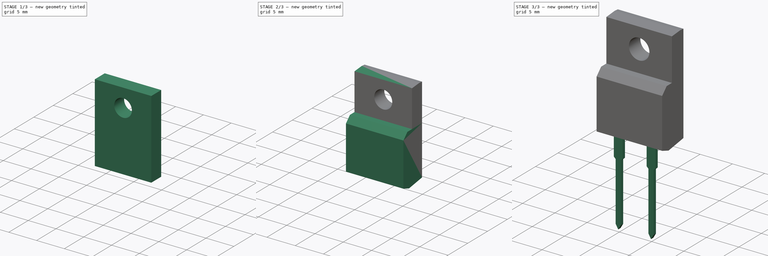
[diagram: build sequence overview — one tinted view per stage of 3, left to right]
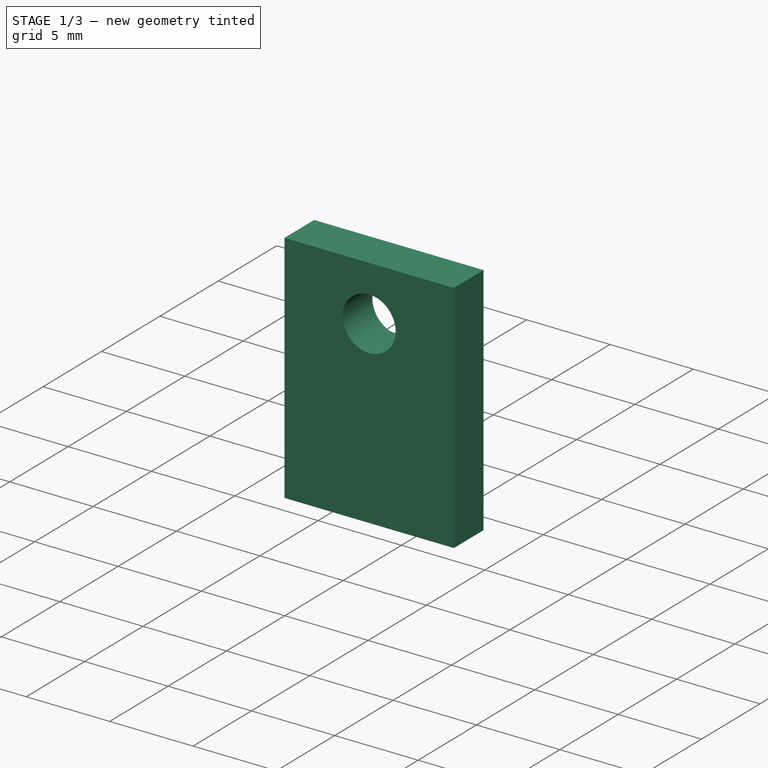
[diagram: stage 1 of 3 — iso view after this stage's code; geometry added in this stage tinted green]
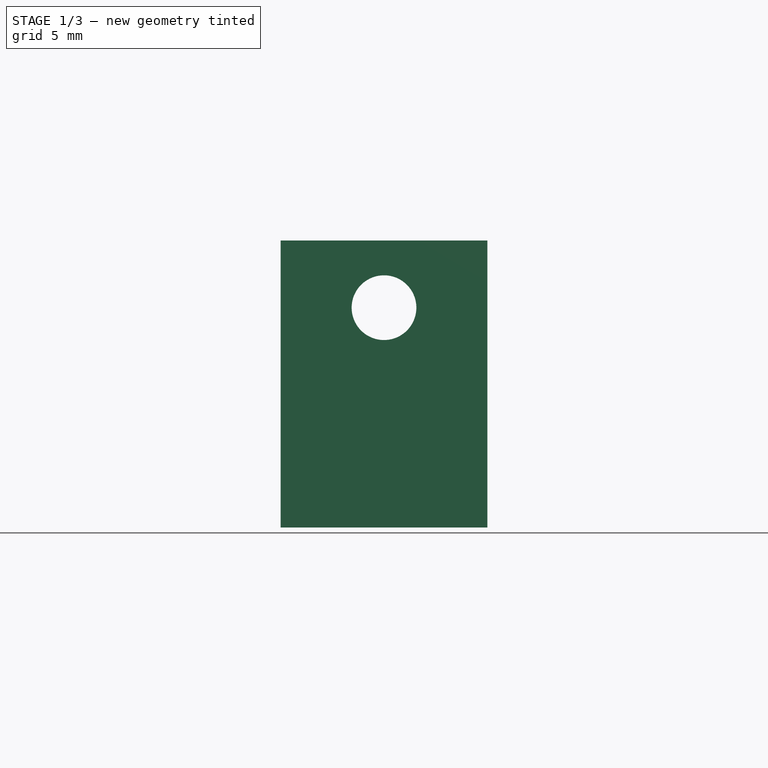
[diagram: stage 1 of 3 — front view after this stage's code; geometry added in this stage tinted green]
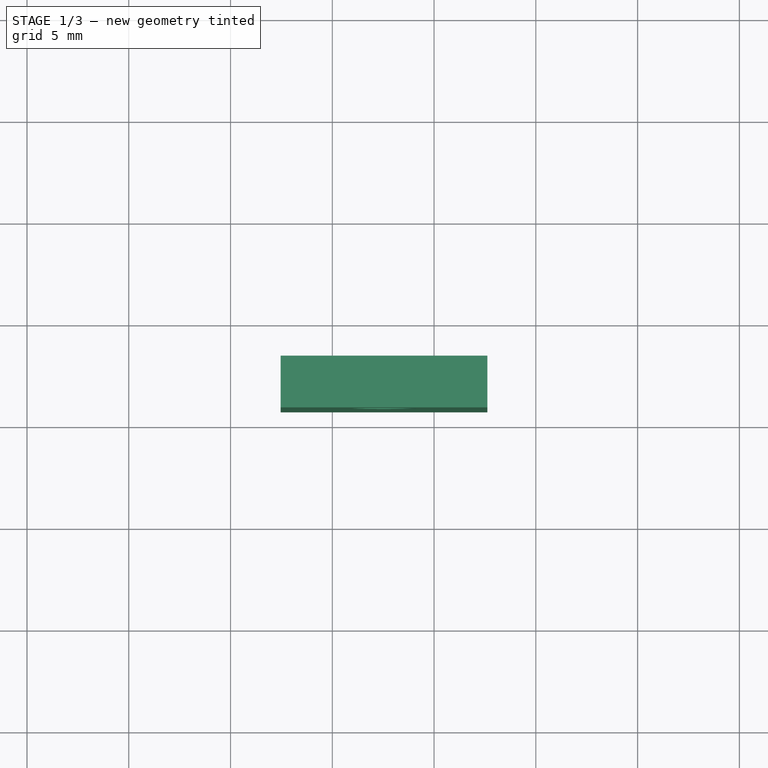
[diagram: stage 1 of 3 — top view after this stage's code; geometry added in this stage tinted green]
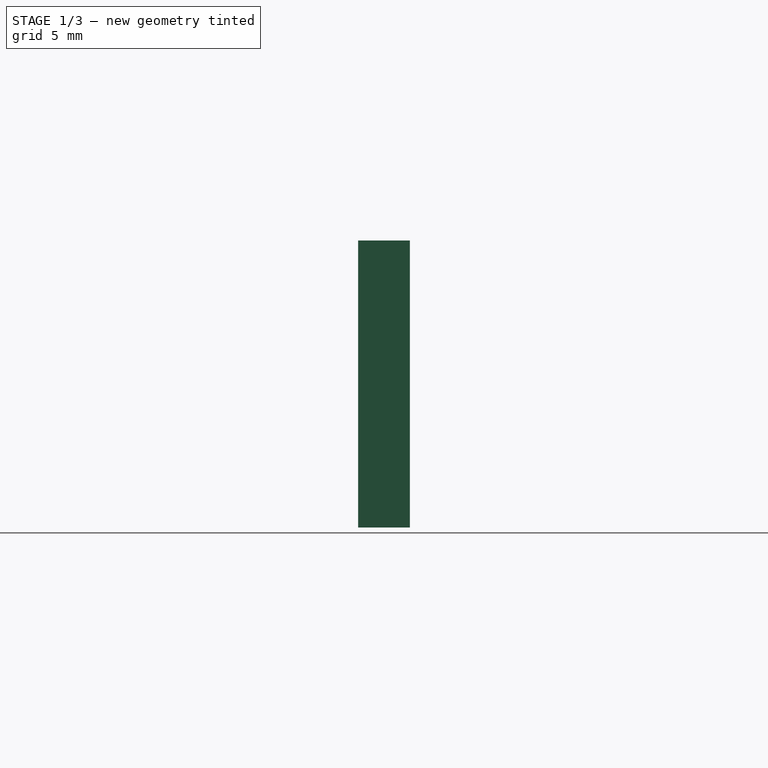
[diagram: stage 1 of 3 — right view after this stage's code; geometry added in this stage tinted green]
FCSTD DOCUMENT  (FreeCAD 0.16R6712 (Git))
Label: TO-220F-2_Vertical
License: All rights reserved
LicenseURL: http://en.wikipedia.org/wiki/All_rights_reserved
objects: Sketcher::SketchObject×5, PartDesign::Pad×3, PartDesign::Pocket×2, Part::MultiFuse×1
note: 16 computed .brp shape members not serialized (recipe doc carries the construction recipe); baked Part::Feature solids carry a one-line shape summary decoded from their .brp

FEATURE [Sketcher::SketchObject] Sketch004
  Placement = pos=(0,0,5) rot=(0,0,1;0rad)
  expr: Constraints[10] = (2.96 + 2.56) / 2 + (0.6 + 0.45) / 2
  expr: Constraints[9] = (2.42 + 2.66) / 2
  expr: Constraints[8] = (9.960000000000001 + 10.36) / 2
  sketch-geometry (5):
    g0: LineSegment StartX=-2.54 StartY=3.285 StartZ=0 EndX=7.62 EndY=3.285 EndZ=0
    g1: LineSegment StartX=7.62 StartY=3.285 StartZ=0 EndX=7.62 EndY=0.745 EndZ=0
    g2: LineSegment StartX=7.62 StartY=0.745 StartZ=0 EndX=-2.54 EndY=0.745 EndZ=0
    g3: LineSegment StartX=-2.54 StartY=0.745 StartZ=0 EndX=-2.54 EndY=3.285 EndZ=0
    g4: LineSegment [constr] StartX=0 StartY=3.285 StartZ=0 EndX=2.54 EndY=3.285 EndZ=0
  constraints (15):
    c: Coincident(g0,g1)
    c: Coincident(g1,g2)
    c: Coincident(g2,g3)
    c: Coincident(g3,g0)
    c: Horizontal(g0)
    c: Horizontal(g2)
    c: Vertical(g1)
    c: Vertical(g3)
    c: DistanceX(g0,g0) = 10.16
    c: DistanceY(g3,g3) = 2.54
    c: DistanceY(g-1,g0) = 3.285
    c: PointOnObject(g4,g-2)
    c: Horizontal(g4)
    c: DistanceX(g4,g4) = 2.54
    c: Symmetric(g0,g0,g4)
FEATURE [PartDesign::Pad] Pad002
  Length = 14.1
  Length2 = 100
  Placement = pos=(0,0,5) rot=(0,0,1;0rad)
  Sketch = -> Sketch004
  Type = 0
  expr: Length = (16.07 + 15.67) / 2 + 3.23 - 5
FEATURE [Sketcher::SketchObject] Sketch005
  ExternalGeometry = -> [Pad002]
  Placement = pos=(0,0.745,5) rot=(1,0,0;1.5708rad)
  Support = -> Pad002 [Face3]
  expr: Constraints[1] = 3.18 / 2
  sketch-geometry (1):
    g0: Circle CenterX=2.54 CenterY=10.8 CenterZ=0 NormalX=0 NormalY=0 NormalZ=1 Radius=1.59
  constraints (3):
    c: DistanceX(g-1,g0) = 2.54
    c: Radius(g0) = 1.59
    c: DistanceY(g0,g-3) = 3.3
FEATURE [PartDesign::Pocket] Pocket
  Length = 5
  Placement = pos=(0,0,5) rot=(0,0,1;0rad)
  Sketch = -> Sketch005
  Type = 1
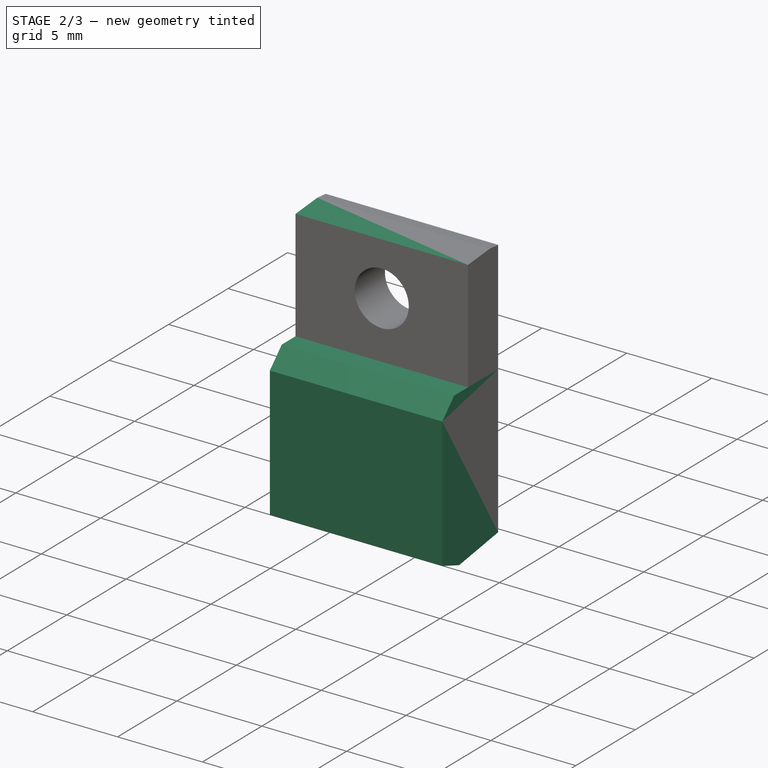
[diagram: stage 2 of 3 — iso view after this stage's code; geometry added in this stage tinted green]
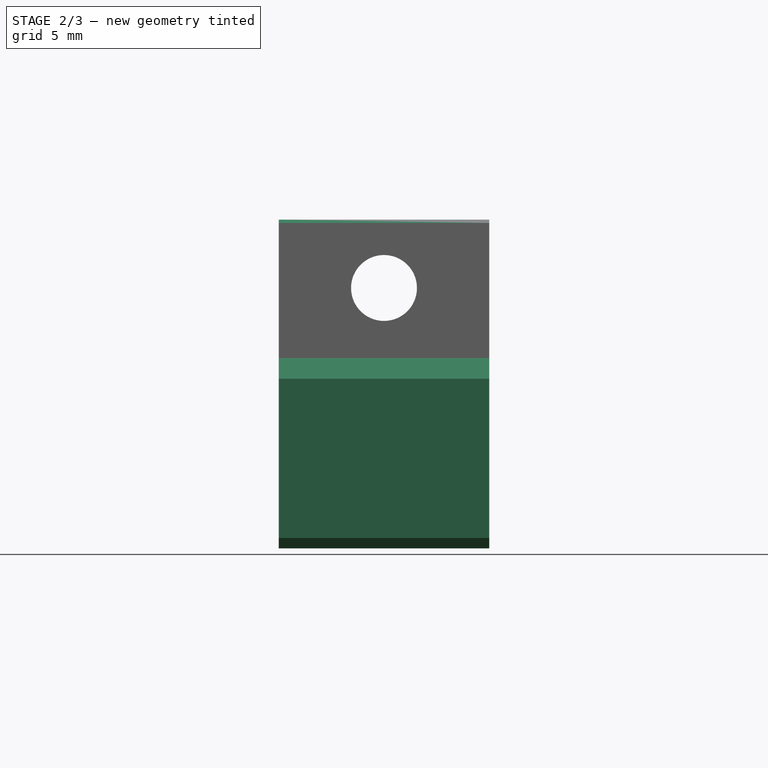
[diagram: stage 2 of 3 — front view after this stage's code; geometry added in this stage tinted green]
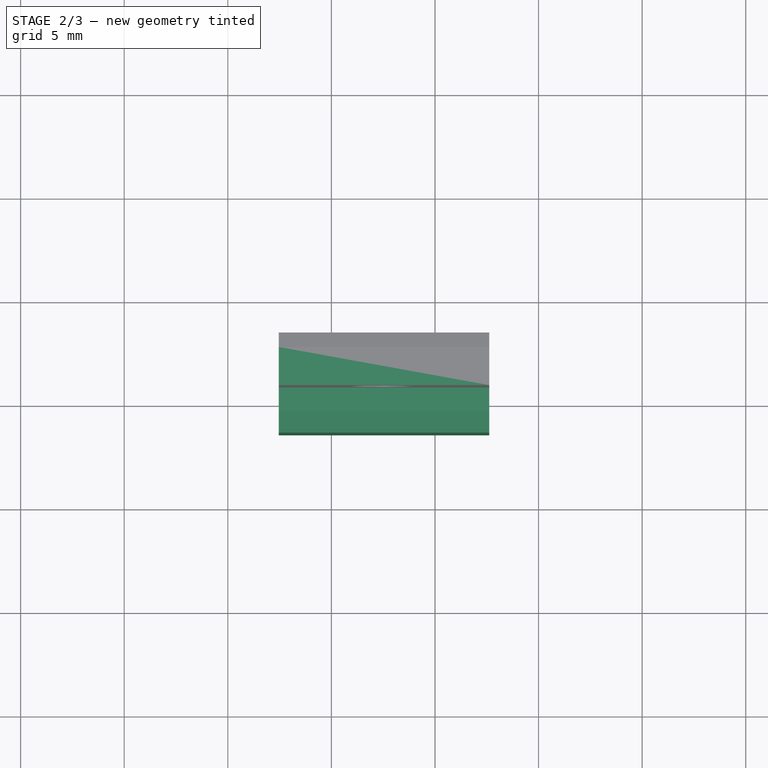
[diagram: stage 2 of 3 — top view after this stage's code; geometry added in this stage tinted green]
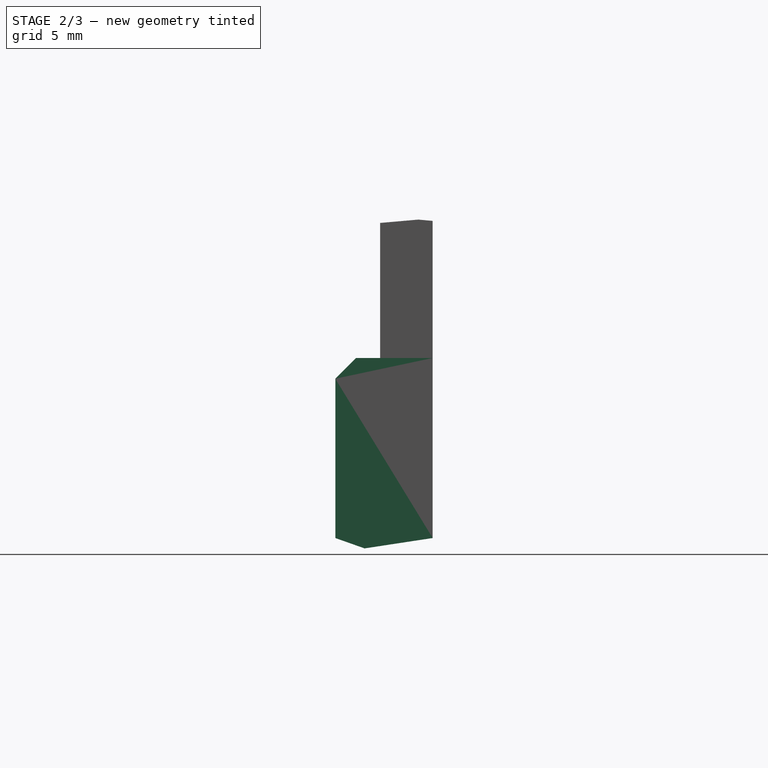
[diagram: stage 2 of 3 — right view after this stage's code; geometry added in this stage tinted green]
FEATURE [Sketcher::SketchObject] Sketch001
  Placement = pos=(2.54,0,0) rot=(0.57735,0.57735,0.57735;2.0944rad)
  expr: Constraints[16] = (16.07 + 15.67) / 2 - 6.68
  expr: Constraints[14] = (4.5 + 4.9) / 2
  expr: Constraints[13] = (2.96 + 2.56) / 2 + (0.6 + 0.45) / 2
  sketch-geometry (7):
    g0: LineSegment StartX=0 StartY=3.23 StartZ=0 EndX=-1.415 EndY=3.73 EndZ=0
    g1: LineSegment StartX=-1.415 StartY=3.73 StartZ=0 EndX=-1.415 EndY=11.42 EndZ=0
    g2: LineSegment StartX=-1.415 StartY=11.42 StartZ=0 EndX=-0.415 EndY=12.42 EndZ=0
    g3: LineSegment StartX=-0.415 StartY=12.42 StartZ=0 EndX=3.285 EndY=12.42 EndZ=0
    g4: LineSegment StartX=3.285 StartY=12.42 StartZ=0 EndX=3.285 EndY=3.73 EndZ=0
    g5: LineSegment StartX=3.285 StartY=3.73 StartZ=0 EndX=0 EndY=3.23 EndZ=0
    g6: LineSegment [constr] StartX=-1.415 StartY=3.73 StartZ=0 EndX=3.285 EndY=3.73 EndZ=0
  constraints (20):
    c: PointOnObject(g0,g-2)
    c: Coincident(g1,g0)
    c: Vertical(g1)
    c: Coincident(g2,g1)
    c: Horizontal(g3)
    c: Coincident(g4,g3)
    c: Vertical(g4)
    c: Coincident(g5,g4)
    c: Coincident(g5,g0)
    c: Coincident(g6,g0)
    c: Coincident(g6,g4)
    c: Horizontal(g6)
    c: Angle(g1,g2) = 2.35619
    c: DistanceX(g0,g4) = 3.285
    c: DistanceX(g1,g3) = 4.7
    c: DistanceY(g0,g4) = 0.5
    c: DistanceY(g0,g3) = 9.19
    c: Coincident(g2,g3)
    c: DistanceX(g1,g2) = 1
    c: DistanceY(g-1,g0) = 3.23
FEATURE [PartDesign::Pad] Pad001
  Length = 10.16
  Length2 = 100
  Midplane = true
  Placement = pos=(2.54,0,0) rot=(0.57735,0.57735,0.57735;2.0944rad)
  Sketch = -> Sketch001
  Type = 0
  expr: Length = (9.960000000000001 + 10.36) / 2
FEATURE [Sketcher::SketchObject] Sketch006
  ExternalGeometry = -> [Pocket]
  Placement = pos=(7.62,0,5) rot=(0.57735,0.57735,0.57735;2.0944rad)
  Support = -> Pocket [Face5]
  sketch-geometry (5):
    g0: LineSegment StartX=2.585 StartY=14.1 StartZ=0 EndX=0.745 EndY=13.939 EndZ=0
    g1: LineSegment StartX=0.745 StartY=13.939 StartZ=0 EndX=0.745 EndY=14.939 EndZ=0
    g2: LineSegment StartX=0.745 StartY=14.939 StartZ=0 EndX=3.285 EndY=14.939 EndZ=0
    g3: LineSegment StartX=3.285 StartY=14.939 StartZ=0 EndX=3.285 EndY=14.0388 EndZ=0
    g4: LineSegment StartX=3.285 StartY=14.0388 StartZ=0 EndX=2.585 EndY=14.1 EndZ=0
  constraints (15):
    c: PointOnObject(g0,g-3)
    c: Coincident(g1,g0)
    c: Vertical(g1)
    c: Coincident(g2,g1)
    c: Horizontal(g2)
    c: Coincident(g3,g2)
    c: Vertical(g3)
    c: PointOnObject(g-3,g3)
    c: PointOnObject(g-3,g1)
    c: Angle(g-3,g0) = 0.0872665
    c: Angle(g4,g-3) = 0.0872665
    c: Coincident(g4,g0)
    c: Coincident(g3,g4)
    c: DistanceX(g0,g-3) = 0.7
    c: DistanceY(g1,g1) = 1
FEATURE [PartDesign::Pocket] Pocket001
  Length = 5
  Placement = pos=(0,0,5) rot=(0,0,1;0rad)
  Sketch = -> Sketch006
  Type = 1
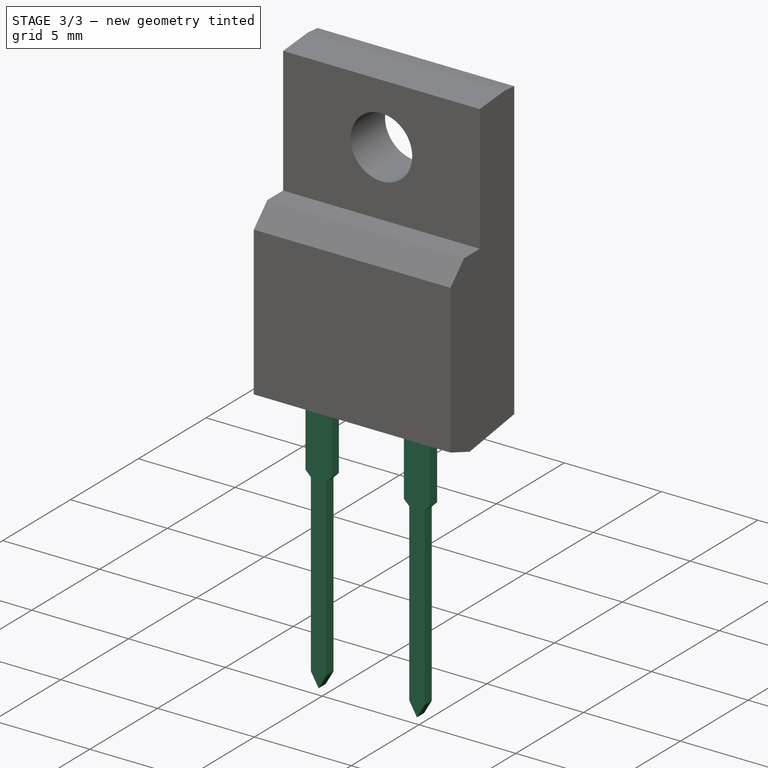
[diagram: stage 3 of 3 — iso view after this stage's code; geometry added in this stage tinted green]
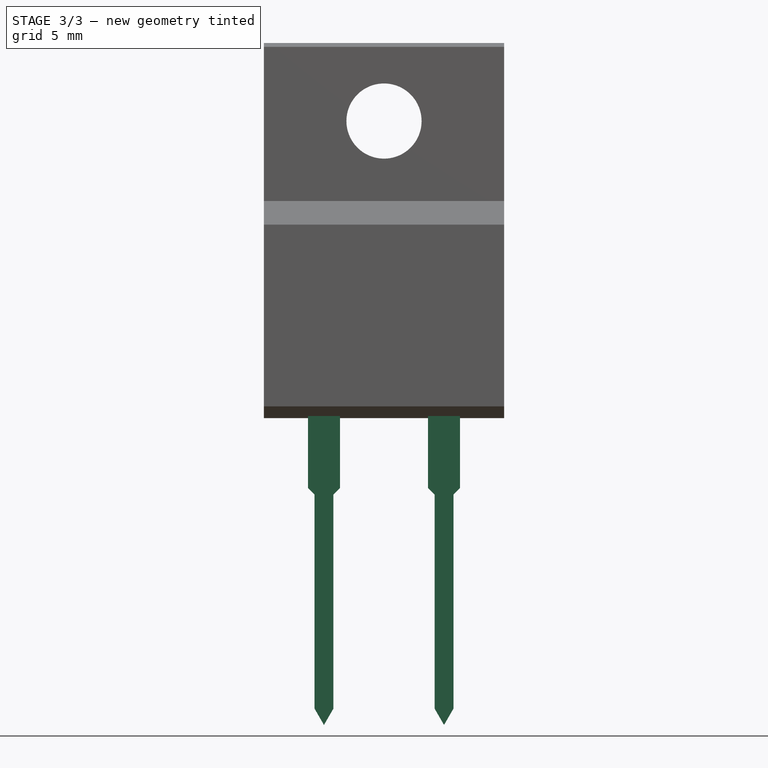
[diagram: stage 3 of 3 — front view after this stage's code; geometry added in this stage tinted green]
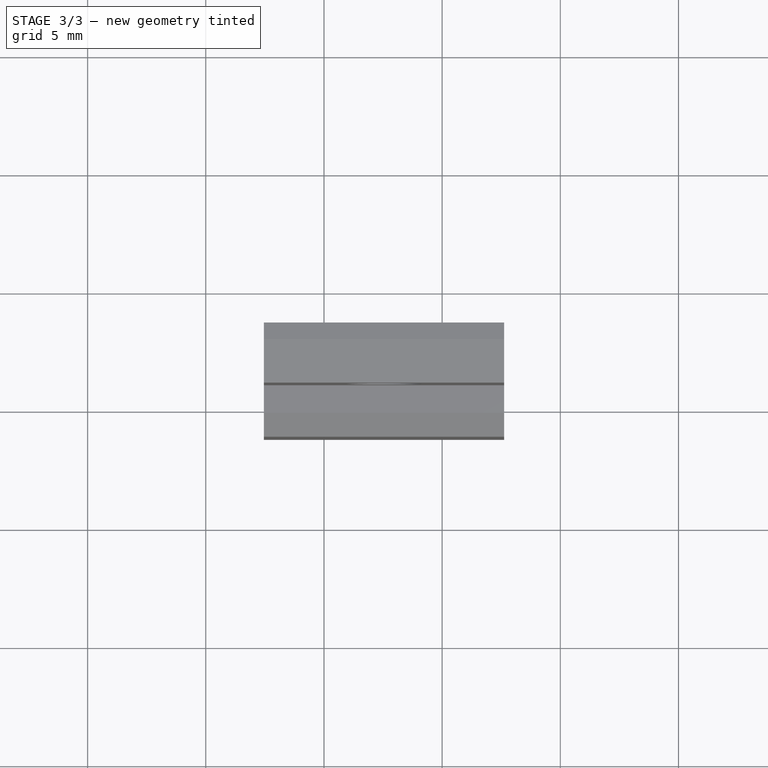
[diagram: stage 3 of 3 — top view after this stage's code; geometry added in this stage tinted green]
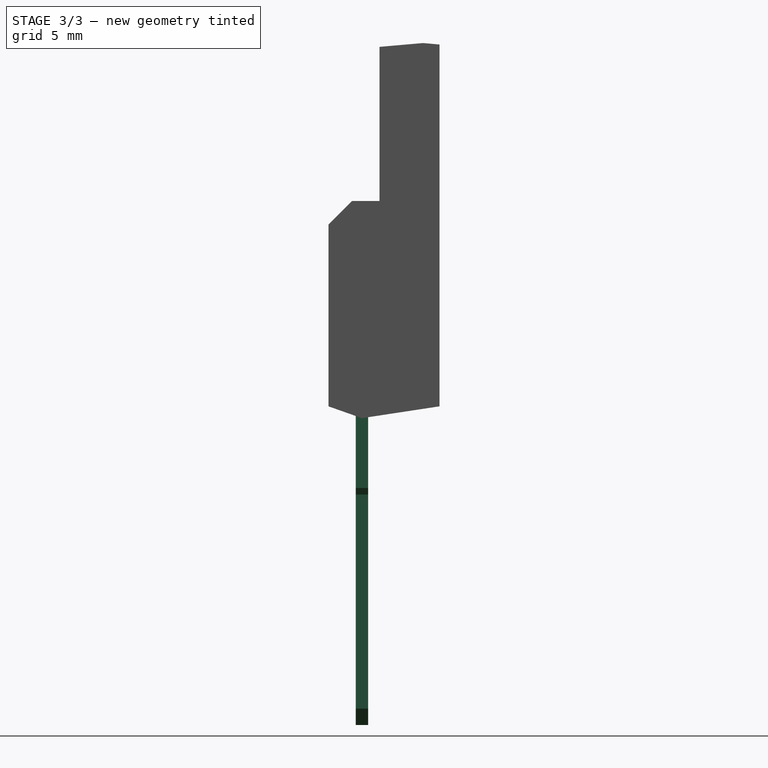
[diagram: stage 3 of 3 — right view after this stage's code; geometry added in this stage tinted green]
FEATURE [Sketcher::SketchObject] Sketch
  Placement = pos=(0,0,0) rot=(1,0,0;1.5708rad)
  expr: Constraints[36] = (10.05 + 9.449999999999999) / 2
  expr: Constraints[7] = (1.47 + 1.24) / 2
  expr: Constraints[33] = 3.23 + 0.5
  sketch-geometry (33):
    g0: LineSegment [constr] StartX=-0.4 StartY=0 StartZ=0 EndX=0.4 EndY=0 EndZ=0
    g1: LineSegment [constr] StartX=-0.6775 StartY=0.2775 StartZ=0 EndX=0.6775 EndY=0.2775 EndZ=0
    g2: GeomPoint [constr] X=0 Y=0.2775 Z=0
    g3: LineSegment [constr] StartX=-0.4 StartY=-9.05718 StartZ=0 EndX=0.4 EndY=-9.05718 EndZ=0
    g4: GeomPoint [constr] X=0 Y=-9.05718 Z=0
    g5: LineSegment StartX=-0.6775 StartY=0.2775 StartZ=0 EndX=-0.4 EndY=0 EndZ=0
    g6: LineSegment StartX=-0.4 StartY=0 StartZ=0 EndX=-0.4 EndY=-9.05718 EndZ=0
    g7: LineSegment StartX=-0.4 StartY=-9.05718 StartZ=0 EndX=0 EndY=-9.75 EndZ=0
    g8: LineSegment StartX=0 StartY=-9.75 StartZ=0 EndX=0.4 EndY=-9.05718 EndZ=0
    g9: LineSegment StartX=0.4 StartY=-9.05718 StartZ=0 EndX=0.4 EndY=0 EndZ=0
    g10: LineSegment StartX=0.4 StartY=0 StartZ=0 EndX=0.6775 EndY=0.2775 EndZ=0
    g11: LineSegment StartX=0.6775 StartY=0.2775 StartZ=0 EndX=0.6775 EndY=3.73 EndZ=0
    g12: LineSegment StartX=0.6775 StartY=3.73 StartZ=0 EndX=-0.6775 EndY=3.73 EndZ=0
    g13: LineSegment StartX=-0.6775 StartY=3.73 StartZ=0 EndX=-0.6775 EndY=0.2775 EndZ=0
    g14: LineSegment [constr] StartX=0 StartY=-9.75 StartZ=0 EndX=0 EndY=0.2775 EndZ=0
    g15: LineSegment [constr] StartX=4.68 StartY=0 StartZ=0 EndX=5.48 EndY=0 EndZ=0
    g16: LineSegment [constr] StartX=4.4025 StartY=0.2775 StartZ=0 EndX=5.7575 EndY=0.2775 EndZ=0
    g17: GeomPoint [constr] X=5.08 Y=0.2775 Z=0
    g18: LineSegment [constr] StartX=4.68 StartY=-9.05718 StartZ=0 EndX=5.48 EndY=-9.05718 EndZ=0
    g19: GeomPoint [constr] X=5.08 Y=-9.05718 Z=0
    g20: LineSegment StartX=4.4025 StartY=0.2775 StartZ=0 EndX=4.68 EndY=0 EndZ=0
    g21: LineSegment StartX=4.68 StartY=0 StartZ=0 EndX=4.68 EndY=-9.05718 EndZ=0
    g22: LineSegment StartX=4.68 StartY=-9.05718 StartZ=0 EndX=5.08 EndY=-9.75 EndZ=0
    g23: LineSegment StartX=5.08 StartY=-9.75 StartZ=0 EndX=5.48 EndY=-9.05718 EndZ=0
    g24: LineSegment StartX=5.48 StartY=-9.05718 StartZ=0 EndX=5.48 EndY=0 EndZ=0
    g25: LineSegment StartX=5.48 StartY=0 StartZ=0 EndX=5.7575 EndY=0.2775 EndZ=0
    g26: LineSegment StartX=5.7575 StartY=0.2775 StartZ=0 EndX=5.7575 EndY=3.73 EndZ=0
    g27: LineSegment StartX=5.7575 StartY=3.73 StartZ=0 EndX=4.4025 EndY=3.73 EndZ=0
    g28: LineSegment StartX=4.4025 StartY=3.73 StartZ=0 EndX=4.4025 EndY=0.2775 EndZ=0
    g29: LineSegment [constr] StartX=5.08 StartY=-9.75 StartZ=0 EndX=5.08 EndY=0.2775 EndZ=0
    g30: GeomPoint [constr] X=5.08 Y=0 Z=0
    g31: LineSegment [constr] StartX=0 StartY=-9.75 StartZ=0 EndX=5.08 EndY=-9.75 EndZ=0
    g32: LineSegment [constr] StartX=-0.6775 StartY=3.73 StartZ=0 EndX=4.4025 EndY=3.73 EndZ=0
  constraints (79):
    c: PointOnObject(g0,g-1)
    c: Horizontal(g0)
    c: Symmetric(g0,g0,g-1)
    c: DistanceX(g0,g0) = 0.8
    c: Horizontal(g1)
    c: PointOnObject(g2,g-2)
    c: Symmetric(g1,g1,g2)
    c: DistanceX(g1,g1) = 1.355
    c: Horizontal(g3)
    c: Equal(g0,g3) = 0.8
    c: PointOnObject(g4,g-2)
    c: Symmetric(g3,g3,g4)
    c: Coincident(g5,g1)
    c: Coincident(g5,g0)
    c: Coincident(g6,g0)
    c: Coincident(g6,g3)
    c: Coincident(g7,g3)
    c: Coincident(g8,g7)
    c: Coincident(g8,g3)
    c: PointOnObject(g7,g-2)
    c: Coincident(g9,g3)
    c: Coincident(g9,g0)
    c: Coincident(g10,g0)
    c: Coincident(g10,g1)
    c: Coincident(g11,g1)
    c: Vertical(g11)
    c: Coincident(g12,g11)
    c: Horizontal(g12)
    c: Coincident(g13,g12)
    c: Coincident(g13,g1)
    c: Vertical(g13)
    c: Angle(g5,g13) = 2.35619
    c: Angle(g9,g8) = 2.61799
    c: DistanceY(g-1,g12) = 3.73
    c: Coincident(g14,g7)
    c: Coincident(g14,g2)
    c: DistanceY(g7,g-1) = 9.75
    c: Horizontal(g15)
    c: Equal(g0,g15) = 0.8
    c: Horizontal(g16)
    c: Symmetric(g16,g16,g17)
    c: Equal(g1,g16) = 1.355
    c: Horizontal(g18)
    c: Equal(g15,g18) = 0.8
    c: Symmetric(g18,g18,g19)
    c: Coincident(g20,g16)
    c: Coincident(g20,g15)
    c: Coincident(g21,g15)
    c: Coincident(g21,g18)
    c: Coincident(g22,g18)
    c: Coincident(g23,g22)
    c: Coincident(g23,g18)
    c: Coincident(g24,g18)
    c: Coincident(g24,g15)
    c: Coincident(g25,g15)
    c: Coincident(g25,g16)
    c: Coincident(g26,g16)
    c: Vertical(g26)
    c: Coincident(g27,g26)
    c: Horizontal(g27)
    c: Coincident(g28,g27)
    c: Coincident(g28,g16)
    c: Vertical(g28)
    c: Angle(g20,g28) = 2.35619
    c: Angle(g24,g23) = 2.61799
    c: Coincident(g29,g22)
    c: Coincident(g29,g17)
    c: Vertical(g29)
    c: PointOnObject(g30,g29)
    c: Symmetric(g15,g15,g30)
    c: PointOnObject(g19,g29)
    c: Coincident(g31,g7)
    c: Coincident(g31,g22)
    c: Horizontal(g31)
    c: PointOnObject(g15,g-1)
    c: Coincident(g32,g12)
    c: Coincident(g32,g27)
    c: Horizontal(g32)
    c: DistanceX(g31,g31) = 5.08
FEATURE [PartDesign::Pad] Pad
  Length = 0.525
  Length2 = 100
  Midplane = true
  Placement = pos=(0,0,0) rot=(1,0,0;1.5708rad)
  Reversed = true
  Sketch = -> Sketch
  Type = 0
  expr: Length = (0.6 + 0.45) / 2
FEATURE [Part::MultiFuse] Pocket001_mp_cp  label="TO-220F-2_Vertical"
  Shapes = -> [Pocket001,Pad001,Pad]
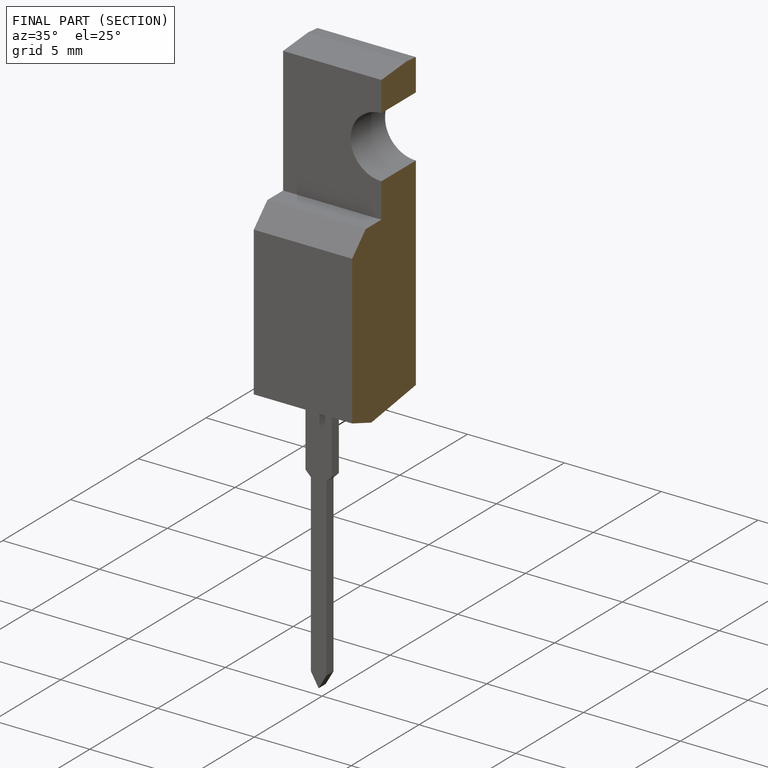
[diagram: finished part — half-section view (interior)]
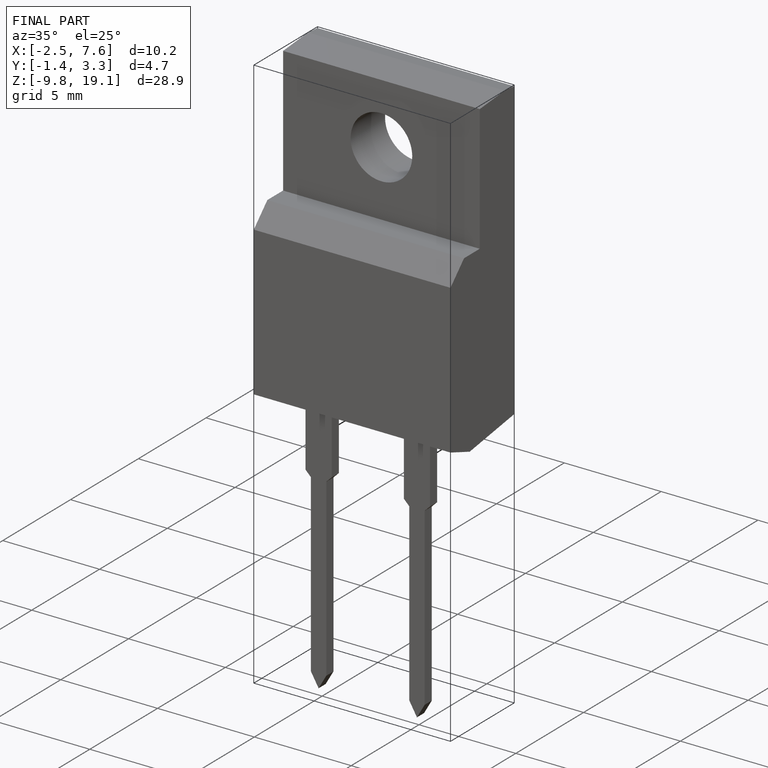
[diagram: finished part — iso view with bounding-box wireframe]
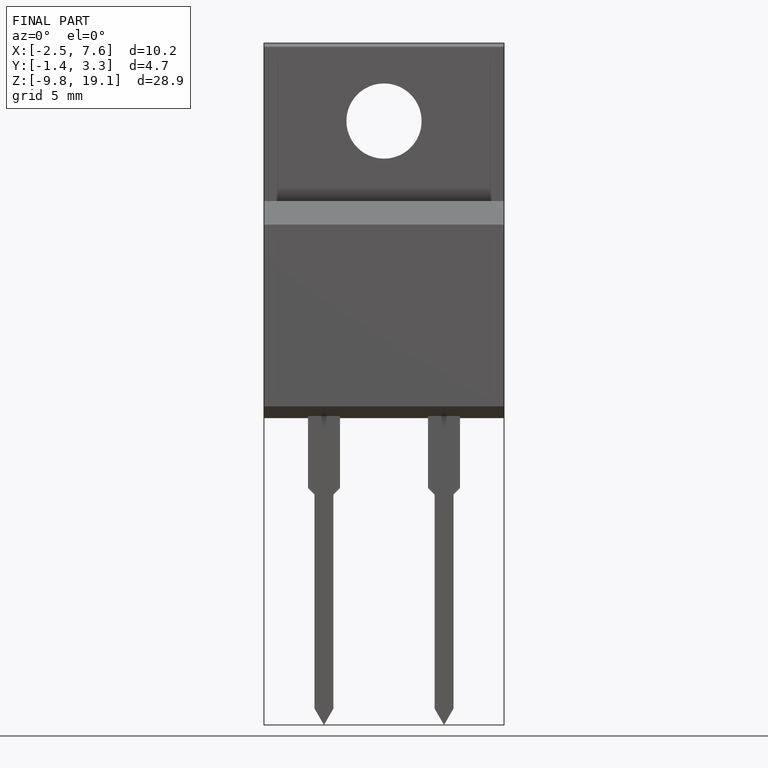
[diagram: finished part — front view with bounding-box wireframe]
